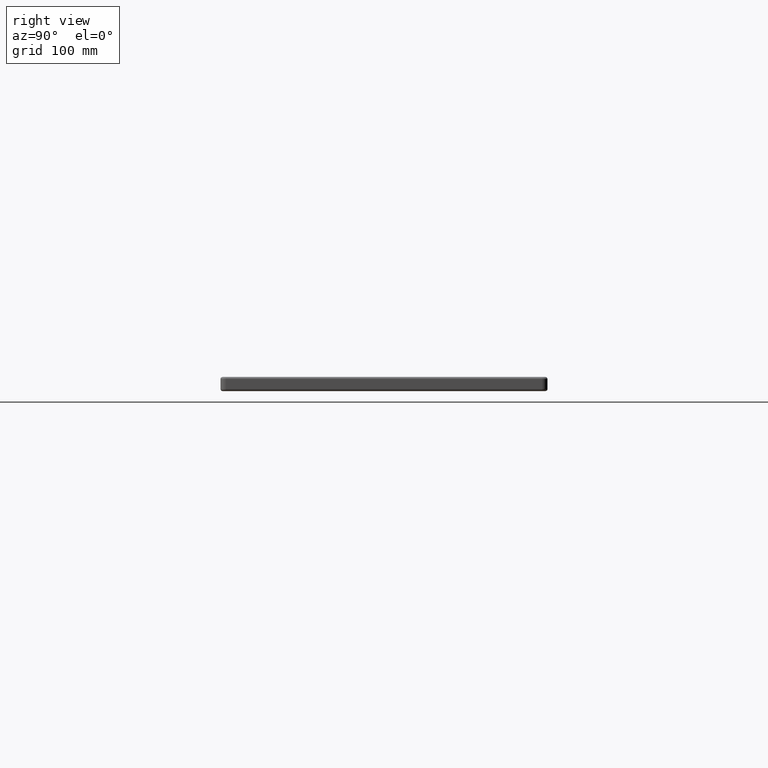
[diagram: clean part render]
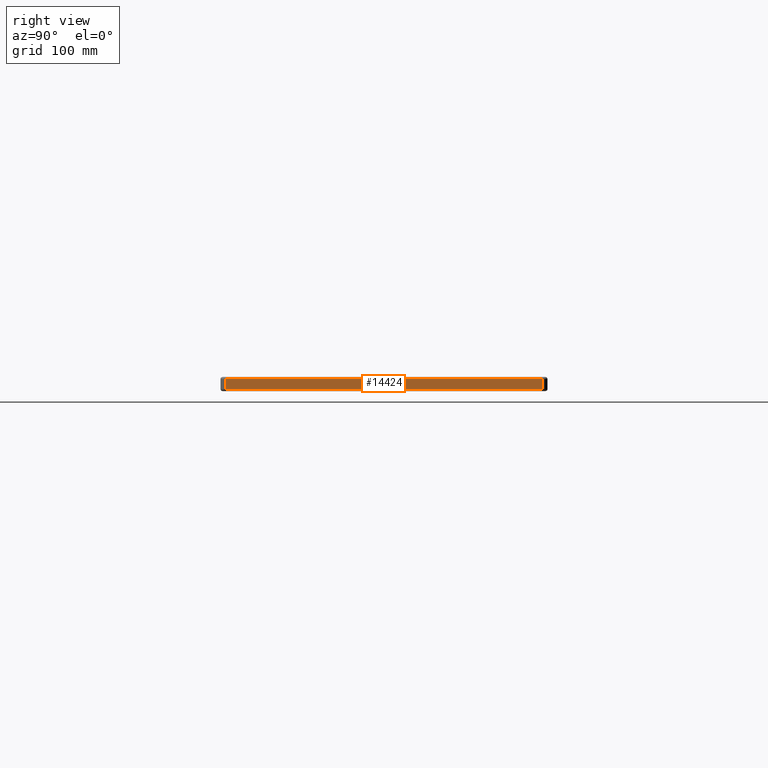
[diagram: same view with one face highlighted and labeled with its STEP entity id]
A machine part, right view. The second image highlights one B-rep face of the part: STEP entity #14424.
In plain terms, the highlighted planar face has unit normal (1, 0, 0).
Its self-contained STEP definition (entity closure, byte-faithful):
#18 = LINE ( 'NONE', #12457, #12032 ) ;
#1055 = LINE ( 'NONE', #8876, #15329 ) ;
#1841 = ORIENTED_EDGE ( 'NONE', *, *, #13379, .T. ) ;
#2145 = VECTOR ( 'NONE', #9563, 1000.000000000000000 ) ;
#2916 = AXIS2_PLACEMENT_3D ( 'NONE', #7657, #15469, #6080 ) ;
#3379 = VECTOR ( 'NONE', #10162, 1000.000000000000000 ) ;
#4581 = CARTESIAN_POINT ( 'NONE',  ( 600.0000000000000000, 294.9999999999999400, -11.00000000000000000 ) ) ;
#5296 = EDGE_CURVE ( 'NONE', #10720, #13552, #1055, .T. ) ;
#6080 = DIRECTION ( 'NONE',  ( 0.0000000000000000000, 0.0000000000000000000, -1.000000000000000000 ) ) ;
#7657 = CARTESIAN_POINT ( 'NONE',  ( 600.0000000000000000, 0.0000000000000000000, -13.00000000000000000 ) ) ;
#8062 = CARTESIAN_POINT ( 'NONE',  ( 600.0000000000000000, 0.0000000000000000000, -11.00000000000000000 ) ) ;
#8872 = FACE_OUTER_BOUND ( 'NONE', #13271, .T. ) ;
#8876 = CARTESIAN_POINT ( 'NONE',  ( 600.0000000000000000, 5.000000000000004400, -2.000000000000000000 ) ) ;
#8945 = DIRECTION ( 'NONE',  ( -0.0000000000000000000, -1.000000000000000000, 0.0000000000000000000 ) ) ;
#9158 = PLANE ( 'NONE',  #2916 ) ;
#9563 = DIRECTION ( 'NONE',  ( -0.0000000000000000000, 1.000000000000000000, 0.0000000000000000000 ) ) ;
#9584 = CARTESIAN_POINT ( 'NONE',  ( 600.0000000000000000, 4.999999999999999100, -11.00000000000000000 ) ) ;
#10162 = DIRECTION ( 'NONE',  ( 0.0000000000000000000, 0.0000000000000000000, 1.000000000000000000 ) ) ;
#10720 = VERTEX_POINT ( 'NONE', #14385 ) ;
#10805 = VERTEX_POINT ( 'NONE', #9584 ) ;
#11336 = EDGE_CURVE ( 'NONE', #10805, #13837, #16647, .T. ) ;
#12032 = VECTOR ( 'NONE', #17222, 1000.000000000000000 ) ;
#12119 = ORIENTED_EDGE ( 'NONE', *, *, #5296, .T. ) ;
#12457 = CARTESIAN_POINT ( 'NONE',  ( 600.0000000000000000, 4.999999999999999100, -13.00000000000000000 ) ) ;
#13271 = EDGE_LOOP ( 'NONE', ( #1841, #19366, #14599, #12119 ) ) ;
#13302 = CARTESIAN_POINT ( 'NONE',  ( 600.0000000000000000, 294.9999999999999400, -13.00000000000000000 ) ) ;
#13379 = EDGE_CURVE ( 'NONE', #13552, #10805, #18, .T. ) ;
#13552 = VERTEX_POINT ( 'NONE', #17946 ) ;
#13837 = VERTEX_POINT ( 'NONE', #4581 ) ;
#14385 = CARTESIAN_POINT ( 'NONE',  ( 600.0000000000000000, 294.9999999999999400, -2.000000000000000000 ) ) ;
#14424 = ADVANCED_FACE ( 'NONE', ( #8872 ), #9158, .T. ) ;
#14599 = ORIENTED_EDGE ( 'NONE', *, *, #17138, .T. ) ;
#15329 = VECTOR ( 'NONE', #8945, 1000.000000000000000 ) ;
#15469 = DIRECTION ( 'NONE',  ( 1.000000000000000000, 0.0000000000000000000, 0.0000000000000000000 ) ) ;
#16647 = LINE ( 'NONE', #8062, #2145 ) ;
#17138 = EDGE_CURVE ( 'NONE', #13837, #10720, #18313, .T. ) ;
#17222 = DIRECTION ( 'NONE',  ( 0.0000000000000000000, -0.0000000000000000000, -1.000000000000000000 ) ) ;
#17946 = CARTESIAN_POINT ( 'NONE',  ( 600.0000000000000000, 4.999999999999999100, -2.000000000000000000 ) ) ;
#18313 = LINE ( 'NONE', #13302, #3379 ) ;
#19366 = ORIENTED_EDGE ( 'NONE', *, *, #11336, .T. ) ;